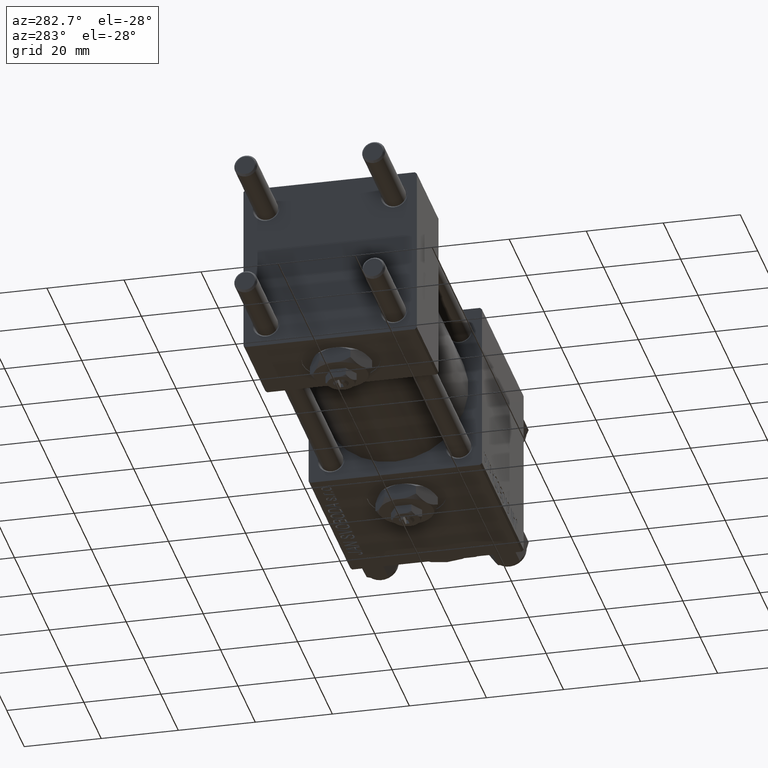
[diagram: clean part render]
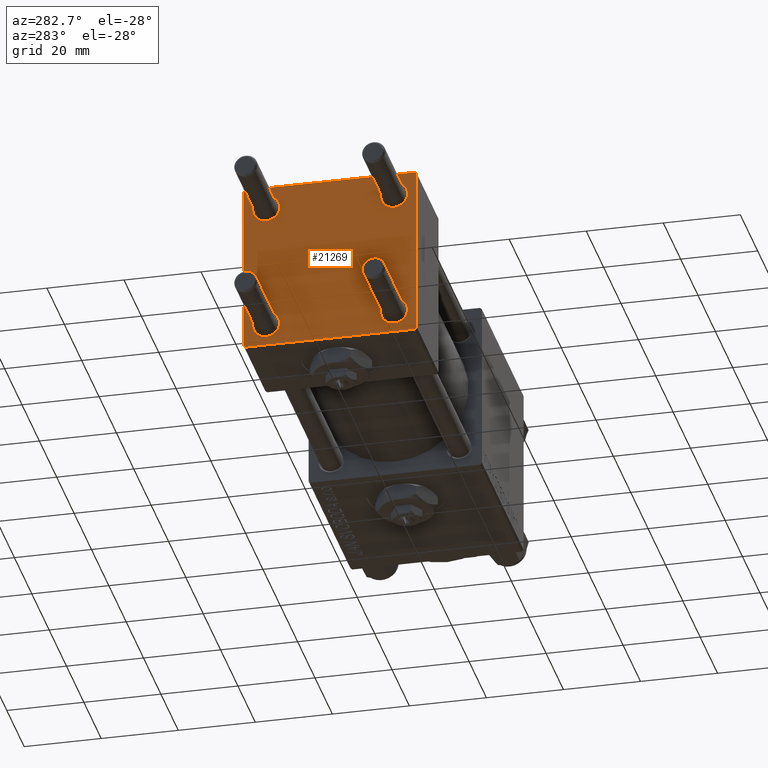
[diagram: same view with one face highlighted and labeled with its STEP entity id]
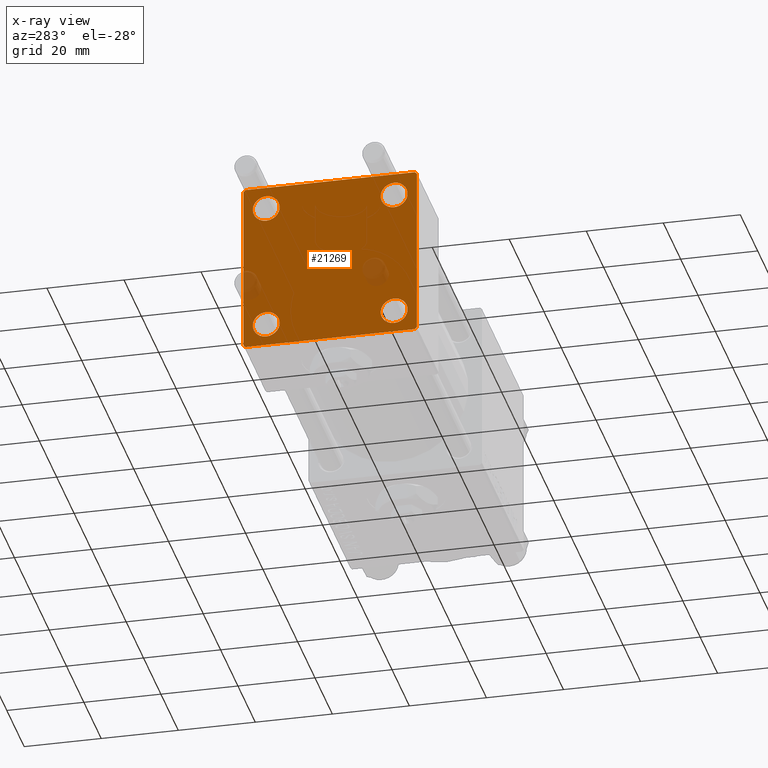
[diagram: x-ray of the same camera — body ghosted, the highlighted face saturated]
A machine part, auxiliary view. The second image highlights one B-rep face of the part: STEP entity #21269.
The next image is the same camera in x-ray: the body ghosted, the highlighted face saturated — about 4% of this face is hidden behind the body in this view.
In plain terms, the highlighted planar face has unit normal (-1, 0, 0).
Its self-contained STEP definition (entity closure, byte-faithful):
#167 = DIRECTION ( 'NONE',  ( 0.000000000000000000, 0.000000000000000000, 1.000000000000000000 ) ) ;
#268 = VECTOR ( 'NONE', #37449, 999.9999999999998863 ) ;
#567 = ORIENTED_EDGE ( 'NONE', *, *, #42346, .T. ) ;
#672 = ORIENTED_EDGE ( 'NONE', *, *, #48484, .T. ) ;
#916 = DIRECTION ( 'NONE',  ( 0.000000000000000000, -1.000000000000000000, -2.312964634635742957E-16 ) ) ;
#1156 = CIRCLE ( 'NONE', #51549, 3.499999999999996003 ) ;
#1251 = EDGE_CURVE ( 'NONE', #15318, #3672, #8636, .T. ) ;
#3094 = EDGE_CURVE ( 'NONE', #3672, #15318, #1156, .T. ) ;
#3154 = LINE ( 'NONE', #23400, #26718 ) ;
#3491 = CARTESIAN_POINT ( 'NONE',  ( 0.000000000000000000, 22.50000000000000000, 21.99999999999999645 ) ) ;
#3580 = LINE ( 'NONE', #45112, #11715 ) ;
#3672 = VERTEX_POINT ( 'NONE', #18565 ) ;
#4072 = AXIS2_PLACEMENT_3D ( 'NONE', #42919, #14785, #42409 ) ;
#4691 = VERTEX_POINT ( 'NONE', #32436 ) ;
#4700 = VECTOR ( 'NONE', #41727, 1000.000000000000000 ) ;
#5334 = ORIENTED_EDGE ( 'NONE', *, *, #36707, .T. ) ;
#5469 = CARTESIAN_POINT ( 'NONE',  ( 0.000000000000000000, 22.50000000000000000, 22.50000000000000355 ) ) ;
#5792 = EDGE_CURVE ( 'NONE', #27589, #24029, #47324, .T. ) ;
#5873 = CARTESIAN_POINT ( 'NONE',  ( 0.000000000000000000, 22.50000000000000000, 22.50000000000000355 ) ) ;
#5949 = CARTESIAN_POINT ( 'NONE',  ( 0.000000000000000000, 16.59999999999999787, -20.10000000000000142 ) ) ;
#6609 = EDGE_CURVE ( 'NONE', #4691, #7988, #25622, .T. ) ;
#6703 = EDGE_LOOP ( 'NONE', ( #50570, #12163 ) ) ;
#6711 = CARTESIAN_POINT ( 'NONE',  ( 0.000000000000000000, 16.59999999999999787, 20.10000000000000142 ) ) ;
#6986 = FACE_BOUND ( 'NONE', #6703, .T. ) ;
#7245 = FACE_OUTER_BOUND ( 'NONE', #44100, .T. ) ;
#7440 = DIRECTION ( 'NONE',  ( 0.000000000000000000, 0.000000000000000000, 1.000000000000000000 ) ) ;
#7651 = EDGE_CURVE ( 'NONE', #49710, #26621, #9543, .T. ) ;
#7818 = DIRECTION ( 'NONE',  ( 1.000000000000000000, -0.000000000000000000, 0.000000000000000000 ) ) ;
#7988 = VERTEX_POINT ( 'NONE', #26725 ) ;
#8636 = CIRCLE ( 'NONE', #34659, 3.499999999999996003 ) ;
#9543 = CIRCLE ( 'NONE', #45642, 3.499999999999996003 ) ;
#9895 = VECTOR ( 'NONE', #49795, 1000.000000000000000 ) ;
#10155 = ORIENTED_EDGE ( 'NONE', *, *, #1251, .T. ) ;
#10200 = CARTESIAN_POINT ( 'NONE',  ( 0.000000000000000000, -16.59999999999999076, -13.10000000000001030 ) ) ;
#11442 = DIRECTION ( 'NONE',  ( 0.000000000000000000, 0.000000000000000000, -1.000000000000000000 ) ) ;
#11449 = CARTESIAN_POINT ( 'NONE',  ( 0.000000000000000000, 0.000000000000000000, 0.000000000000000000 ) ) ;
#11715 = VECTOR ( 'NONE', #916, 1000.000000000000000 ) ;
#11756 = CARTESIAN_POINT ( 'NONE',  ( 0.000000000000000000, 16.59999999999999787, -16.60000000000000497 ) ) ;
#12163 = ORIENTED_EDGE ( 'NONE', *, *, #12640, .T. ) ;
#12320 = ORIENTED_EDGE ( 'NONE', *, *, #6609, .T. ) ;
#12496 = EDGE_CURVE ( 'NONE', #27589, #7988, #29911, .T. ) ;
#12640 = EDGE_CURVE ( 'NONE', #26854, #29281, #18938, .T. ) ;
#13638 = DIRECTION ( 'NONE',  ( 0.000000000000000000, 0.000000000000000000, 1.000000000000000000 ) ) ;
#14785 = DIRECTION ( 'NONE',  ( 1.000000000000000000, -0.000000000000000000, 0.000000000000000000 ) ) ;
#15213 = CARTESIAN_POINT ( 'NONE',  ( 0.000000000000000000, 16.59999999999999787, -16.60000000000000497 ) ) ;
#15269 = ORIENTED_EDGE ( 'NONE', *, *, #36644, .T. ) ;
#15318 = VERTEX_POINT ( 'NONE', #6711 ) ;
#15336 = DIRECTION ( 'NONE',  ( 0.000000000000000000, 0.000000000000000000, 1.000000000000000000 ) ) ;
#16529 = CARTESIAN_POINT ( 'NONE',  ( 0.000000000000000000, -22.50000000000000000, -21.99999999999997158 ) ) ;
#17993 = CARTESIAN_POINT ( 'NONE',  ( 0.000000000000000000, 22.50000000000000000, -21.99999999999996803 ) ) ;
#18285 = FACE_BOUND ( 'NONE', #19389, .T. ) ;
#18565 = CARTESIAN_POINT ( 'NONE',  ( 0.000000000000000000, 16.59999999999999787, 13.10000000000000675 ) ) ;
#18938 = CIRCLE ( 'NONE', #25698, 3.499999999999996003 ) ;
#19389 = EDGE_LOOP ( 'NONE', ( #5334, #567 ) ) ;
#21096 = CARTESIAN_POINT ( 'NONE',  ( 0.000000000000000000, 16.59999999999999787, -13.10000000000000675 ) ) ;
#21269 = ADVANCED_FACE ( 'NONE', ( #18285, #6986, #22774, #31178, #7245 ), #38292, .T. ) ;
#21676 = EDGE_LOOP ( 'NONE', ( #10155, #41799 ) ) ;
#22225 = AXIS2_PLACEMENT_3D ( 'NONE', #28839, #40926, #37254 ) ;
#22408 = CARTESIAN_POINT ( 'NONE',  ( 0.000000000000000000, 21.99999999999999289, 22.50000000000000355 ) ) ;
#22628 = DIRECTION ( 'NONE',  ( 0.000000000000000000, -0.7071067811865426878, 0.7071067811865524577 ) ) ;
#22774 = FACE_BOUND ( 'NONE', #39912, .T. ) ;
#22815 = DIRECTION ( 'NONE',  ( -0.000000000000000000, -0.7071067811865426878, -0.7071067811865524577 ) ) ;
#23400 = CARTESIAN_POINT ( 'NONE',  ( 0.000000000000000000, -22.25000000000014566, -22.24999999999984013 ) ) ;
#23742 = DIRECTION ( 'NONE',  ( 1.000000000000000000, -0.000000000000000000, 0.000000000000000000 ) ) ;
#24029 = VERTEX_POINT ( 'NONE', #3491 ) ;
#24325 = LINE ( 'NONE', #51685, #42069 ) ;
#24664 = EDGE_CURVE ( 'NONE', #4691, #45351, #24325, .T. ) ;
#25622 = LINE ( 'NONE', #37703, #268 ) ;
#25698 = AXIS2_PLACEMENT_3D ( 'NONE', #51893, #51375, #15336 ) ;
#25896 = ORIENTED_EDGE ( 'NONE', *, *, #24664, .F. ) ;
#26621 = VERTEX_POINT ( 'NONE', #21096 ) ;
#26718 = VECTOR ( 'NONE', #22628, 1000.000000000000000 ) ;
#26725 = CARTESIAN_POINT ( 'NONE',  ( 0.000000000000000000, -21.99999999999997868, 22.50000000000000000 ) ) ;
#26826 = CARTESIAN_POINT ( 'NONE',  ( 0.000000000000000000, -21.99999999999997158, -22.50000000000000711 ) ) ;
#26854 = VERTEX_POINT ( 'NONE', #27889 ) ;
#27296 = VECTOR ( 'NONE', #22815, 1000.000000000000000 ) ;
#27589 = VERTEX_POINT ( 'NONE', #22408 ) ;
#27794 = LINE ( 'NONE', #43816, #27296 ) ;
#27889 = CARTESIAN_POINT ( 'NONE',  ( 0.000000000000000000, -16.59999999999999076, -20.10000000000000497 ) ) ;
#28684 = DIRECTION ( 'NONE',  ( 1.000000000000000000, -0.000000000000000000, 0.000000000000000000 ) ) ;
#28839 = CARTESIAN_POINT ( 'NONE',  ( 0.000000000000000000, -16.59999999999999076, 16.60000000000000853 ) ) ;
#29281 = VERTEX_POINT ( 'NONE', #10200 ) ;
#29295 = LINE ( 'NONE', #5873, #9895 ) ;
#29723 = DIRECTION ( 'NONE',  ( 0.000000000000000000, 0.000000000000000000, 1.000000000000000000 ) ) ;
#29911 = LINE ( 'NONE', #5469, #4700 ) ;
#31178 = FACE_BOUND ( 'NONE', #21676, .T. ) ;
#31883 = ORIENTED_EDGE ( 'NONE', *, *, #5792, .T. ) ;
#32436 = CARTESIAN_POINT ( 'NONE',  ( 0.000000000000000000, -22.50000000000000000, 22.00000000000000000 ) ) ;
#33116 = CARTESIAN_POINT ( 'NONE',  ( 0.000000000000000000, -16.59999999999999076, 16.60000000000000853 ) ) ;
#34614 = DIRECTION ( 'NONE',  ( -1.000000000000000000, 0.000000000000000000, -0.000000000000000000 ) ) ;
#34659 = AXIS2_PLACEMENT_3D ( 'NONE', #44712, #28684, #29723 ) ;
#35019 = AXIS2_PLACEMENT_3D ( 'NONE', #33116, #45201, #13638 ) ;
#36001 = DIRECTION ( 'NONE',  ( 0.000000000000000000, 0.7071067811865474617, -0.7071067811865474617 ) ) ;
#36644 = EDGE_CURVE ( 'NONE', #43836, #48797, #27794, .T. ) ;
#36707 = EDGE_CURVE ( 'NONE', #45741, #43135, #40725, .T. ) ;
#37254 = DIRECTION ( 'NONE',  ( 0.000000000000000000, 0.000000000000000000, 1.000000000000000000 ) ) ;
#37449 = DIRECTION ( 'NONE',  ( -0.000000000000000000, 0.7071067811865525687, 0.7071067811865425767 ) ) ;
#37703 = CARTESIAN_POINT ( 'NONE',  ( -0.000000000000000000, -22.24999999999984013, 22.25000000000015277 ) ) ;
#38022 = ORIENTED_EDGE ( 'NONE', *, *, #12496, .F. ) ;
#38177 = VECTOR ( 'NONE', #36001, 1000.000000000000114 ) ;
#38292 = PLANE ( 'NONE',  #49576 ) ;
#39154 = DIRECTION ( 'NONE',  ( 0.000000000000000000, 0.000000000000000000, 1.000000000000000000 ) ) ;
#39912 = EDGE_LOOP ( 'NONE', ( #47170, #51094 ) ) ;
#40286 = ORIENTED_EDGE ( 'NONE', *, *, #47694, .T. ) ;
#40725 = CIRCLE ( 'NONE', #22225, 3.499999999999996003 ) ;
#40926 = DIRECTION ( 'NONE',  ( 1.000000000000000000, -0.000000000000000000, 0.000000000000000000 ) ) ;
#41727 = DIRECTION ( 'NONE',  ( 0.000000000000000000, -1.000000000000000000, -7.709882115452476934E-17 ) ) ;
#41799 = ORIENTED_EDGE ( 'NONE', *, *, #3094, .T. ) ;
#42069 = VECTOR ( 'NONE', #11442, 1000.000000000000000 ) ;
#42346 = EDGE_CURVE ( 'NONE', #43135, #45741, #44242, .T. ) ;
#42409 = DIRECTION ( 'NONE',  ( 0.000000000000000000, 0.000000000000000000, 1.000000000000000000 ) ) ;
#42585 = AXIS2_PLACEMENT_3D ( 'NONE', #15213, #52032, #39154 ) ;
#42919 = CARTESIAN_POINT ( 'NONE',  ( 0.000000000000000000, -16.59999999999999076, -16.60000000000000853 ) ) ;
#43135 = VERTEX_POINT ( 'NONE', #49165 ) ;
#43283 = EDGE_CURVE ( 'NONE', #26621, #49710, #50201, .T. ) ;
#43464 = CARTESIAN_POINT ( 'NONE',  ( 0.000000000000000000, 16.59999999999999787, 16.60000000000000497 ) ) ;
#43816 = CARTESIAN_POINT ( 'NONE',  ( 0.000000000000000000, 22.25000000000014566, -22.24999999999984013 ) ) ;
#43836 = VERTEX_POINT ( 'NONE', #17993 ) ;
#44100 = EDGE_LOOP ( 'NONE', ( #672, #15269, #50829, #40286, #25896, #12320, #38022, #31883 ) ) ;
#44242 = CIRCLE ( 'NONE', #35019, 3.499999999999996003 ) ;
#44712 = CARTESIAN_POINT ( 'NONE',  ( 0.000000000000000000, 16.59999999999999787, 16.60000000000000497 ) ) ;
#45112 = CARTESIAN_POINT ( 'NONE',  ( 0.000000000000000000, 22.50000000000000000, -22.49999999999999645 ) ) ;
#45201 = DIRECTION ( 'NONE',  ( 1.000000000000000000, -0.000000000000000000, 0.000000000000000000 ) ) ;
#45271 = VERTEX_POINT ( 'NONE', #26826 ) ;
#45351 = VERTEX_POINT ( 'NONE', #16529 ) ;
#45642 = AXIS2_PLACEMENT_3D ( 'NONE', #11756, #7818, #167 ) ;
#45741 = VERTEX_POINT ( 'NONE', #50822 ) ;
#46902 = CIRCLE ( 'NONE', #4072, 3.499999999999996003 ) ;
#47170 = ORIENTED_EDGE ( 'NONE', *, *, #43283, .T. ) ;
#47324 = LINE ( 'NONE', #51794, #38177 ) ;
#47694 = EDGE_CURVE ( 'NONE', #45271, #45351, #3154, .T. ) ;
#47905 = CARTESIAN_POINT ( 'NONE',  ( 0.000000000000000000, 21.99999999999999289, -22.49999999999999645 ) ) ;
#48484 = EDGE_CURVE ( 'NONE', #24029, #43836, #29295, .T. ) ;
#48721 = EDGE_CURVE ( 'NONE', #29281, #26854, #46902, .T. ) ;
#48797 = VERTEX_POINT ( 'NONE', #47905 ) ;
#49165 = CARTESIAN_POINT ( 'NONE',  ( 0.000000000000000000, -16.59999999999999076, 13.10000000000001030 ) ) ;
#49576 = AXIS2_PLACEMENT_3D ( 'NONE', #11449, #34614, #50913 ) ;
#49710 = VERTEX_POINT ( 'NONE', #5949 ) ;
#49795 = DIRECTION ( 'NONE',  ( 0.000000000000000000, 0.000000000000000000, -1.000000000000000000 ) ) ;
#50201 = CIRCLE ( 'NONE', #42585, 3.499999999999996003 ) ;
#50570 = ORIENTED_EDGE ( 'NONE', *, *, #48721, .T. ) ;
#50822 = CARTESIAN_POINT ( 'NONE',  ( 0.000000000000000000, -16.59999999999999076, 20.10000000000000853 ) ) ;
#50829 = ORIENTED_EDGE ( 'NONE', *, *, #51898, .T. ) ;
#50913 = DIRECTION ( 'NONE',  ( -0.000000000000000000, 0.000000000000000000, 1.000000000000000000 ) ) ;
#51094 = ORIENTED_EDGE ( 'NONE', *, *, #7651, .T. ) ;
#51375 = DIRECTION ( 'NONE',  ( 1.000000000000000000, -0.000000000000000000, 0.000000000000000000 ) ) ;
#51549 = AXIS2_PLACEMENT_3D ( 'NONE', #43464, #23742, #7440 ) ;
#51685 = CARTESIAN_POINT ( 'NONE',  ( 0.000000000000000000, -22.50000000000000000, 22.50000000000000000 ) ) ;
#51794 = CARTESIAN_POINT ( 'NONE',  ( 0.000000000000000000, 22.24999999999999645, 22.24999999999999645 ) ) ;
#51893 = CARTESIAN_POINT ( 'NONE',  ( 0.000000000000000000, -16.59999999999999076, -16.60000000000000853 ) ) ;
#51898 = EDGE_CURVE ( 'NONE', #48797, #45271, #3580, .T. ) ;
#52032 = DIRECTION ( 'NONE',  ( 1.000000000000000000, -0.000000000000000000, 0.000000000000000000 ) ) ;